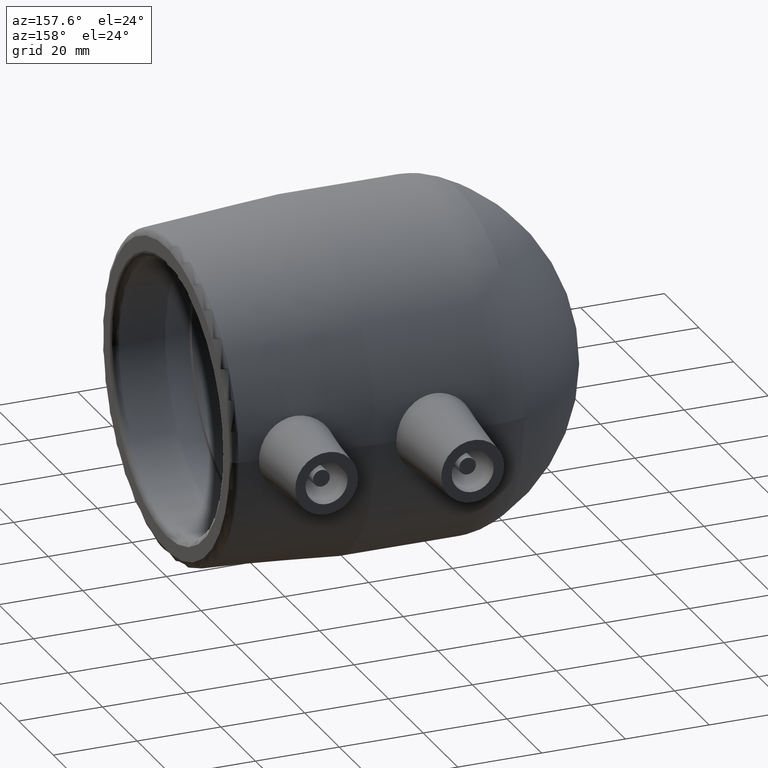
[diagram: clean part render]
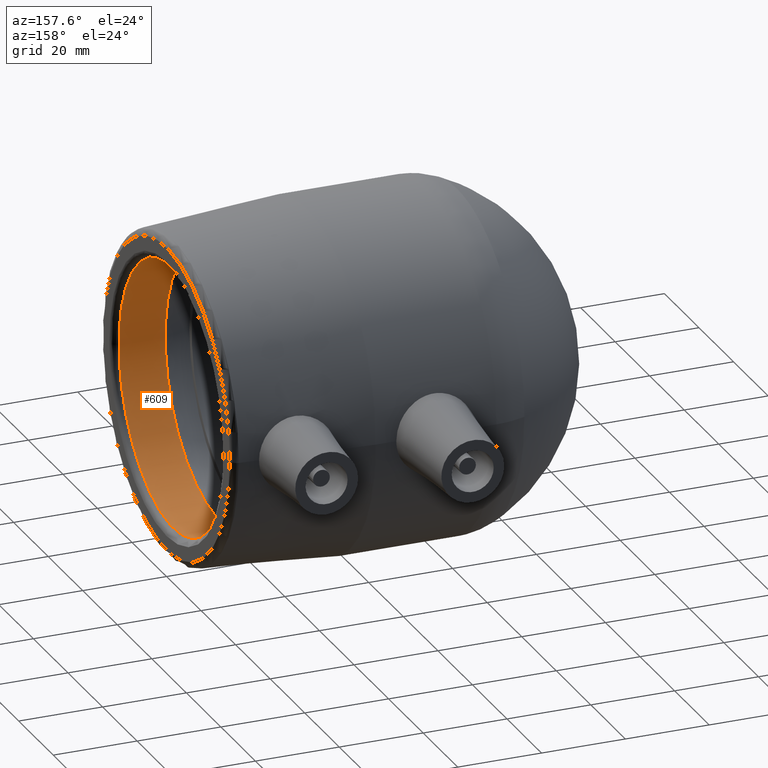
[diagram: same view with one face highlighted and labeled with its STEP entity id]
A machine part, auxiliary view. The second image highlights one B-rep face of the part: STEP entity #609.
In plain terms, the highlighted cylindrical surface (bore or boss wall) has radius 31.5 mm, axis along (1, 0, 0).
Its self-contained STEP definition (entity closure, byte-faithful):
#36=FACE_BOUND('',#210,.T.);
#47=CYLINDRICAL_SURFACE('',#697,31.5);
#147=FACE_OUTER_BOUND('',#209,.T.);
#209=EDGE_LOOP('',(#527));
#210=EDGE_LOOP('',(#528));
#261=CIRCLE('',#694,31.5);
#263=CIRCLE('',#698,31.5);
#316=VERTEX_POINT('',#1188);
#318=VERTEX_POINT('',#1194);
#391=EDGE_CURVE('',#316,#316,#261,.T.);
#393=EDGE_CURVE('',#318,#318,#263,.T.);
#527=ORIENTED_EDGE('',*,*,#393,.F.);
#528=ORIENTED_EDGE('',*,*,#391,.F.);
#609=ADVANCED_FACE('',(#147,#36),#47,.F.);
#694=AXIS2_PLACEMENT_3D('',#1189,#882,#883);
#697=AXIS2_PLACEMENT_3D('',#1193,#888,#889);
#698=AXIS2_PLACEMENT_3D('',#1195,#890,#891);
#882=DIRECTION('center_axis',(-1.,-2.94252051263958E-17,0.));
#883=DIRECTION('ref_axis',(2.64338815386942E-17,-1.,1.83697019872103E-16));
#888=DIRECTION('center_axis',(1.,2.94252051263958E-17,0.));
#889=DIRECTION('ref_axis',(0.,1.,0.));
#890=DIRECTION('center_axis',(1.,2.94252051263958E-17,0.));
#891=DIRECTION('ref_axis',(0.,0.,-1.));
#1188=CARTESIAN_POINT('',(-1.62,31.5,-9.64409354328541E-15));
#1189=CARTESIAN_POINT('Origin',(-1.62,-4.76688323047614E-17,0.));
#1193=CARTESIAN_POINT('Origin',(-6.33333333333333,-1.86359632467174E-16,
0.));
#1194=CARTESIAN_POINT('',(-12.6666666666667,31.5,0.));
#1195=CARTESIAN_POINT('Origin',(-12.6666666666667,-3.72719264934347E-16,
0.));